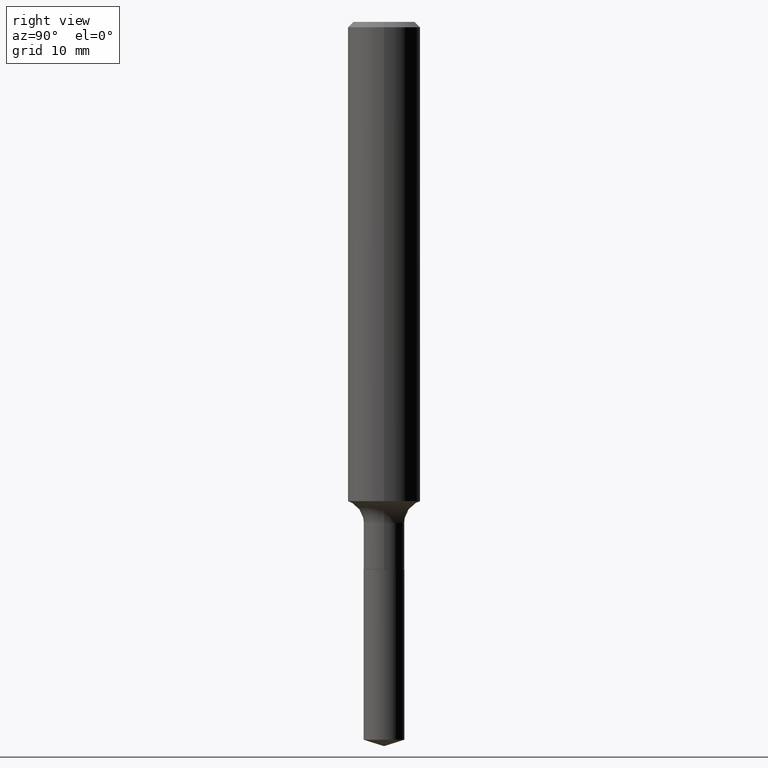
[diagram: clean part render]
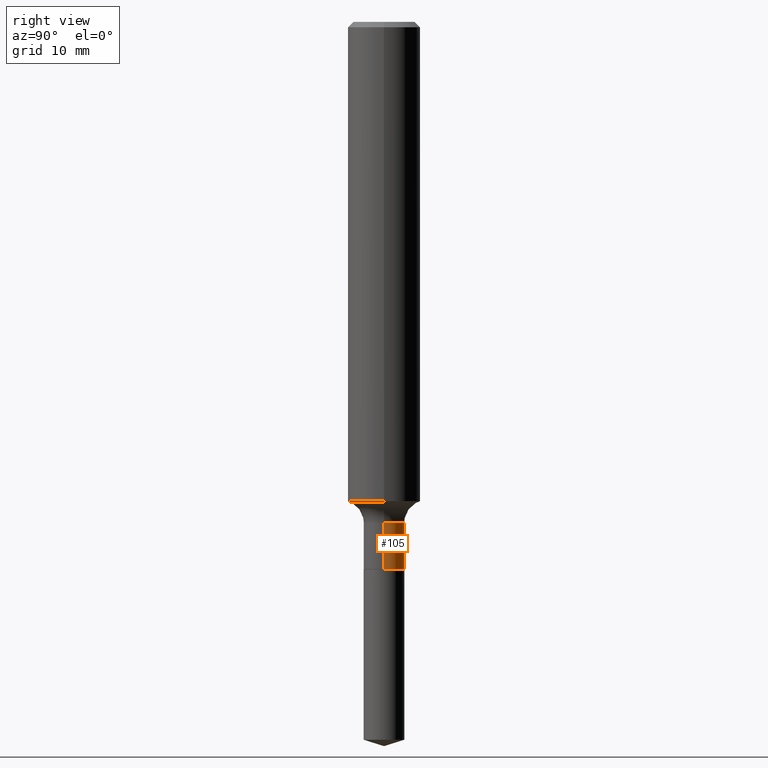
[diagram: same view with one face highlighted and labeled with its STEP entity id]
A machine part, right view. The second image highlights one B-rep face of the part: STEP entity #105.
In plain terms, the highlighted cylindrical surface (edge-blend (fillet) strip) has radius 1.7844 mm, axis along (-0, 0, 1).
Its self-contained STEP definition (entity closure, byte-faithful):
#1 = CARTESIAN_POINT ( 'NONE',  ( -0.07025000000000000688, 4.991562718714704295E-16, -3.455551900904071661E-30 ) ) ;
#9 = DIRECTION ( 'NONE',  ( -2.445468806185136877E-29, 3.491481338843145188E-15, 1.000000000000000000 ) ) ;
#11 = DIRECTION ( 'NONE',  ( 1.000000000000000000, -6.982962677686260400E-15, 0.000000000000000000 ) ) ;
#12 = EDGE_LOOP ( 'NONE', ( #407, #362, #201, #440 ) ) ;
#13 = CARTESIAN_POINT ( 'NONE',  ( 0.000000000000000000, 0.000000000000000000, 0.000000000000000000 ) ) ;
#18 = VERTEX_POINT ( 'NONE', #50 ) ;
#39 = VERTEX_POINT ( 'NONE', #319 ) ;
#50 = CARTESIAN_POINT ( 'NONE',  ( 0.07025000000000002076, -7.089452858521007616E-15, -1.890000000000000346 ) ) ;
#57 = CYLINDRICAL_SURFACE ( 'NONE', #134, 0.07025000000000000688 ) ;
#78 = DIRECTION ( 'NONE',  ( -2.445468806185136597E-29, 3.491481338843145583E-15, 1.000000000000000000 ) ) ;
#105 = ADVANCED_FACE ( 'NONE', ( #409 ), #57, .T. ) ;
#112 = DIRECTION ( 'NONE',  ( -2.445468806185136877E-29, 3.491481338843145188E-15, 1.000000000000000000 ) ) ;
#131 = EDGE_CURVE ( 'NONE', #18, #39, #312, .T. ) ;
#134 = AXIS2_PLACEMENT_3D ( 'NONE', #13, #78, #207 ) ;
#147 = CARTESIAN_POINT ( 'NONE',  ( 4.621936043689908997E-29, -6.598899730413546969E-15, -1.890000000000000346 ) ) ;
#153 = VECTOR ( 'NONE', #112, 39.37007874015748143 ) ;
#154 = LINE ( 'NONE', #461, #153 ) ;
#156 = LINE ( 'NONE', #1, #334 ) ;
#201 = ORIENTED_EDGE ( 'NONE', *, *, #341, .F. ) ;
#207 = DIRECTION ( 'NONE',  ( 1.000000000000000000, -6.982962677686265922E-15, 4.876176775795935232E-29 ) ) ;
#263 = AXIS2_PLACEMENT_3D ( 'NONE', #147, #370, #265 ) ;
#265 = DIRECTION ( 'NONE',  ( 1.000000000000000000, -6.982962677686272233E-15, 0.000000000000000000 ) ) ;
#271 = VERTEX_POINT ( 'NONE', #372 ) ;
#276 = DIRECTION ( 'NONE',  ( -2.445468806185136597E-29, 3.491481338843145583E-15, 1.000000000000000000 ) ) ;
#312 = CIRCLE ( 'NONE', #263, 0.07025000000000002076 ) ;
#319 = CARTESIAN_POINT ( 'NONE',  ( -0.07025000000000002076, -5.818504636698260679E-15, -1.890000000000000346 ) ) ;
#334 = VECTOR ( 'NONE', #9, 39.37007874015748143 ) ;
#341 = EDGE_CURVE ( 'NONE', #271, #469, #458, .T. ) ;
#362 = ORIENTED_EDGE ( 'NONE', *, *, #388, .T. ) ;
#370 = DIRECTION ( 'NONE',  ( -2.445468806185136597E-29, 3.491481338843145583E-15, 1.000000000000000000 ) ) ;
#372 = CARTESIAN_POINT ( 'NONE',  ( 0.07024999999999999301, -6.526975214833375500E-15, -1.728900000000000325 ) ) ;
#380 = AXIS2_PLACEMENT_3D ( 'NONE', #470, #276, #11 ) ;
#388 = EDGE_CURVE ( 'NONE', #39, #469, #156, .T. ) ;
#396 = CARTESIAN_POINT ( 'NONE',  ( -0.07024999999999999301, -5.818504636698260679E-15, -1.728900000000000325 ) ) ;
#407 = ORIENTED_EDGE ( 'NONE', *, *, #131, .T. ) ;
#409 = FACE_OUTER_BOUND ( 'NONE', #12, .T. ) ;
#439 = EDGE_CURVE ( 'NONE', #18, #271, #154, .T. ) ;
#440 = ORIENTED_EDGE ( 'NONE', *, *, #439, .F. ) ;
#458 = CIRCLE ( 'NONE', #380, 0.07024999999999999301 ) ;
#461 = CARTESIAN_POINT ( 'NONE',  ( 0.07025000000000000688, -4.905531281074602522E-16, 3.425514184996644866E-30 ) ) ;
#469 = VERTEX_POINT ( 'NONE', #396 ) ;
#470 = CARTESIAN_POINT ( 'NONE',  ( 4.227971019013483248E-29, -6.036422086725915643E-15, -1.728900000000000325 ) ) ;